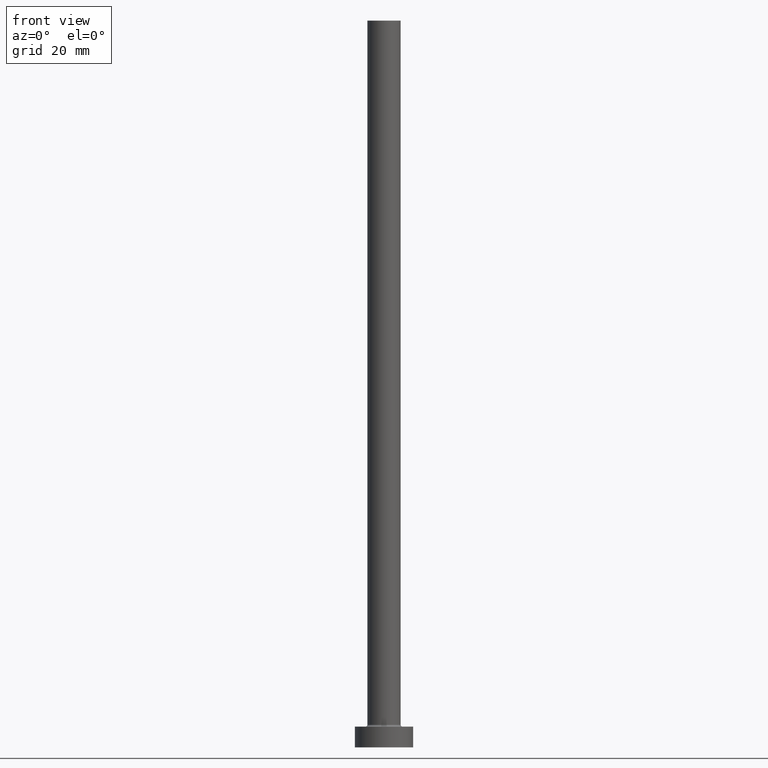
[diagram: clean part render]
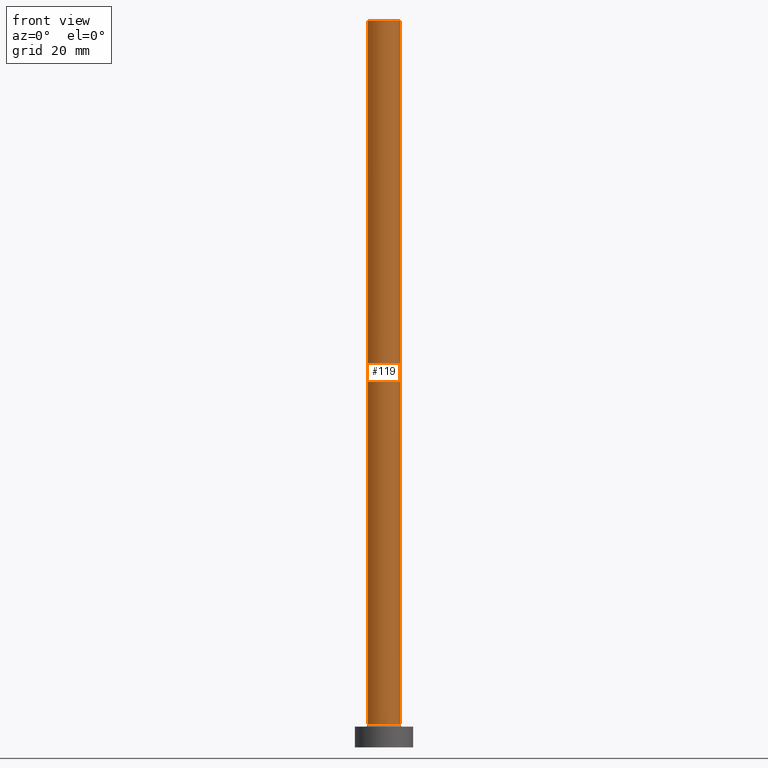
[diagram: same view with one face highlighted and labeled with its STEP entity id]
A machine part, front view. The second image highlights one B-rep face of the part: STEP entity #119.
In plain terms, the highlighted cylindrical surface (edge-blend (fillet) strip) has radius 4 mm, axis along (-0, -0, -1).
Its self-contained STEP definition (entity closure, byte-faithful):
#7 = EDGE_CURVE ( 'NONE', #421, #197, #212, .T. ) ;
#19 = CARTESIAN_POINT ( 'NONE',  ( 4.000000000000000000, 4.898587196589412829E-16, 5.500000000000005329 ) ) ;
#40 = CIRCLE ( 'NONE', #426, 4.000000000000000000 ) ;
#101 = EDGE_CURVE ( 'NONE', #155, #421, #266, .T. ) ;
#119 = ADVANCED_FACE ( 'NONE', ( #127 ), #306, .T. ) ;
#120 = VERTEX_POINT ( 'NONE', #232 ) ;
#126 = EDGE_CURVE ( 'NONE', #155, #120, #378, .T. ) ;
#127 = FACE_OUTER_BOUND ( 'NONE', #336, .T. ) ;
#128 = AXIS2_PLACEMENT_3D ( 'NONE', #374, #190, #339 ) ;
#130 = ORIENTED_EDGE ( 'NONE', *, *, #7, .F. ) ;
#140 = DIRECTION ( 'NONE',  ( 0.000000000000000000, 0.000000000000000000, 1.000000000000000000 ) ) ;
#151 = ORIENTED_EDGE ( 'NONE', *, *, #101, .F. ) ;
#155 = VERTEX_POINT ( 'NONE', #387 ) ;
#164 = VECTOR ( 'NONE', #371, 1000.000000000000000 ) ;
#190 = DIRECTION ( 'NONE',  ( 0.000000000000000000, 0.000000000000000000, 1.000000000000000000 ) ) ;
#197 = VERTEX_POINT ( 'NONE', #19 ) ;
#204 = EDGE_CURVE ( 'NONE', #120, #197, #40, .T. ) ;
#206 = VECTOR ( 'NONE', #250, 1000.000000000000000 ) ;
#212 = LINE ( 'NONE', #459, #206 ) ;
#227 = ORIENTED_EDGE ( 'NONE', *, *, #126, .T. ) ;
#232 = CARTESIAN_POINT ( 'NONE',  ( -4.000000000000000000, 0.000000000000000000, 5.500000000000005329 ) ) ;
#243 = CARTESIAN_POINT ( 'NONE',  ( 0.000000000000000000, 0.000000000000000000, 5.500000000000005329 ) ) ;
#250 = DIRECTION ( 'NONE',  ( -0.000000000000000000, -0.000000000000000000, -1.000000000000000000 ) ) ;
#265 = DIRECTION ( 'NONE',  ( -0.000000000000000000, -0.000000000000000000, -1.000000000000000000 ) ) ;
#266 = CIRCLE ( 'NONE', #128, 4.000000000000000000 ) ;
#306 = CYLINDRICAL_SURFACE ( 'NONE', #425, 4.000000000000000000 ) ;
#316 = DIRECTION ( 'NONE',  ( 1.000000000000000000, 0.000000000000000000, 0.000000000000000000 ) ) ;
#336 = EDGE_LOOP ( 'NONE', ( #130, #151, #227, #435 ) ) ;
#339 = DIRECTION ( 'NONE',  ( 1.000000000000000000, 0.000000000000000000, 0.000000000000000000 ) ) ;
#347 = DIRECTION ( 'NONE',  ( -1.000000000000000000, 0.000000000000000000, 0.000000000000000000 ) ) ;
#371 = DIRECTION ( 'NONE',  ( -0.000000000000000000, -0.000000000000000000, -1.000000000000000000 ) ) ;
#374 = CARTESIAN_POINT ( 'NONE',  ( 0.000000000000000000, 0.000000000000000000, 175.0000000000000284 ) ) ;
#378 = LINE ( 'NONE', #402, #164 ) ;
#387 = CARTESIAN_POINT ( 'NONE',  ( -4.000000000000000000, 0.000000000000000000, 175.0000000000000284 ) ) ;
#402 = CARTESIAN_POINT ( 'NONE',  ( -4.000000000000000000, 0.000000000000000000, 175.0000000000000284 ) ) ;
#421 = VERTEX_POINT ( 'NONE', #444 ) ;
#425 = AXIS2_PLACEMENT_3D ( 'NONE', #437, #265, #347 ) ;
#426 = AXIS2_PLACEMENT_3D ( 'NONE', #243, #140, #316 ) ;
#435 = ORIENTED_EDGE ( 'NONE', *, *, #204, .T. ) ;
#437 = CARTESIAN_POINT ( 'NONE',  ( 0.000000000000000000, 0.000000000000000000, 175.0000000000000284 ) ) ;
#444 = CARTESIAN_POINT ( 'NONE',  ( 4.000000000000000000, 4.898587196589412829E-16, 175.0000000000000284 ) ) ;
#459 = CARTESIAN_POINT ( 'NONE',  ( 4.000000000000000000, 4.898587196589412829E-16, 175.0000000000000284 ) ) ;